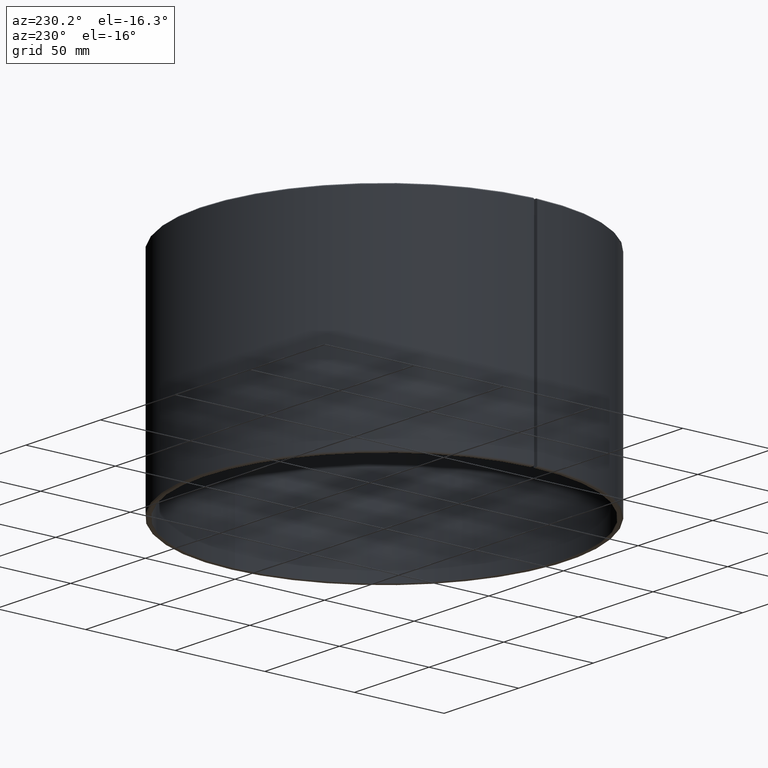
[diagram: clean part render]
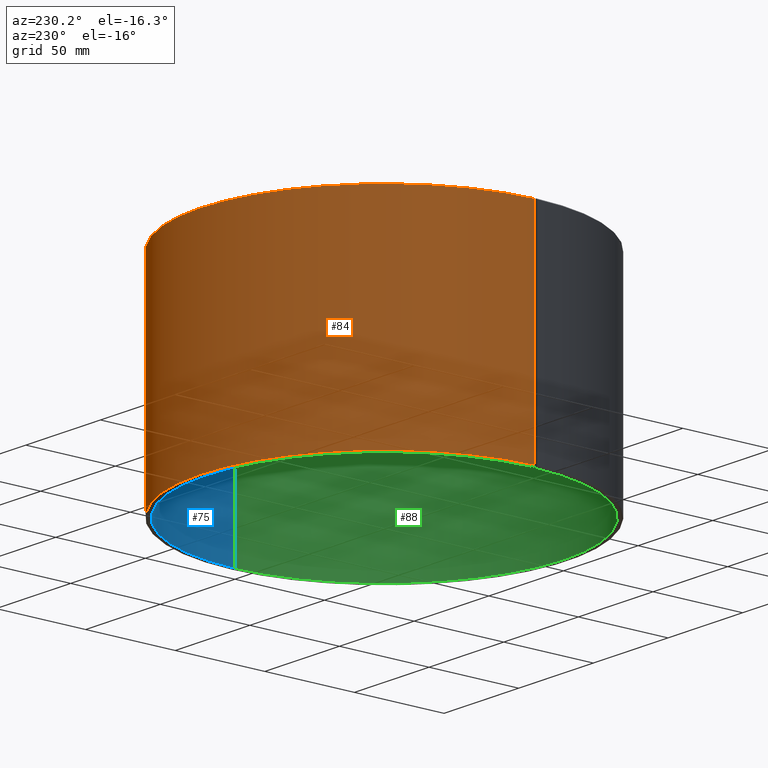
[diagram: same view with three faces highlighted in distinct colors, each labeled with its STEP entity id]
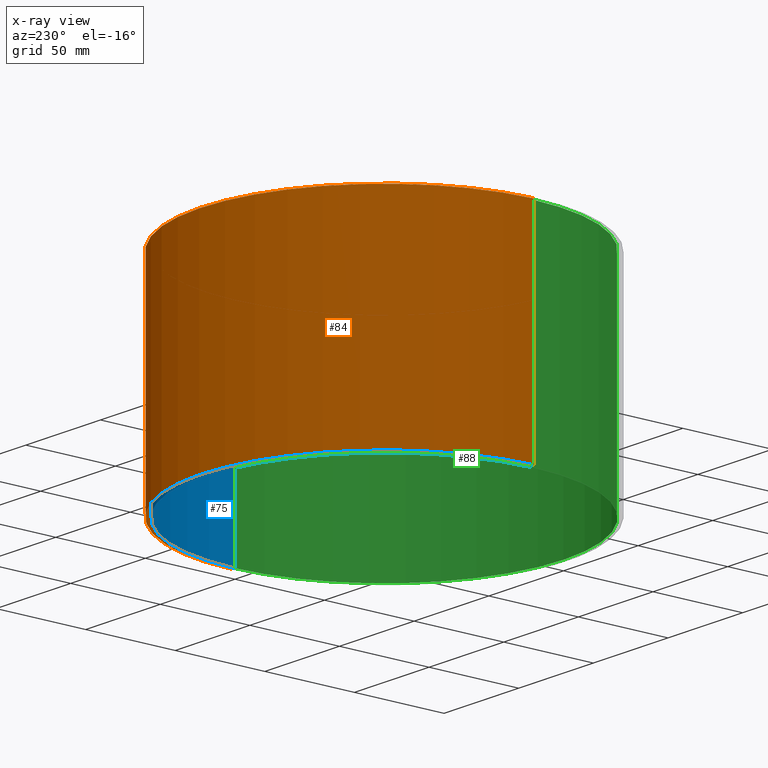
[diagram: x-ray of the same camera — body ghosted, the three highlighted faces saturated]
A machine part, auxiliary view with three faces highlighted in distinct colors.
The next image is the same camera in x-ray (body ghosted, the three faces saturated) — at least one of them is partly hidden behind the body in this view.
Their STEP definitions:

[orange] entity #84 — the highlighted cylindrical surface (partial cylindrical patch) has radius 102.5 mm, axis along (0, -0, 1).
#84=ADVANCED_FACE('',(#110),#111,.T.);
#110=FACE_OUTER_BOUND('',#142,.T.);
#111=CYLINDRICAL_SURFACE('',#143,102.5);
#142=EDGE_LOOP('',(#221,#222,#223,#224));
#143=AXIS2_PLACEMENT_3D('',#225,#226,#227);
#221=ORIENTED_EDGE('',*,*,#291,.T.);
#222=ORIENTED_EDGE('',*,*,#307,.T.);
#223=ORIENTED_EDGE('',*,*,#308,.T.);
#224=ORIENTED_EDGE('',*,*,#309,.F.);
#225=CARTESIAN_POINT('',(3.43859627909202E-014,-3.92324924818481E-014,60.0));
#226=DIRECTION('',(5.48707263966372E-016,-6.09939603923743E-016,1.0));
#227=DIRECTION('',(-1.0,-3.10522299689076E-016,5.48707263966372E-016));
#291=EDGE_CURVE('',#332,#339,#340,.T.);
#307=EDGE_CURVE('',#339,#363,#365,.T.);
#308=EDGE_CURVE('',#363,#366,#367,.T.);
#309=EDGE_CURVE('',#332,#366,#368,.T.);
#332=VERTEX_POINT('',#398);
#339=VERTEX_POINT('',#407);
#340=LINE('',#408,#409);
#363=VERTEX_POINT('',#440);
#365=CIRCLE('',#443,102.5);
#366=VERTEX_POINT('',#444);
#367=LINE('',#445,#446);
#368=CIRCLE('',#447,102.5);
#398=CARTESIAN_POINT('',(102.5,-5.62479928884409E-014,119.5));
#407=CARTESIAN_POINT('',(102.5,1.71170797645324E-014,0.499999999999953));
#408=CARTESIAN_POINT('',(102.5,-1.99565864549782E-014,59.9999999999999));
#409=VECTOR('',#485,1.0);
#440=CARTESIAN_POINT('',(-102.48438875353,1.78887165982153,0.500000000000067));
#443=AXIS2_PLACEMENT_3D('',#513,#514,#515);
#444=CARTESIAN_POINT('',(-102.48438875353,1.78887165982146,119.5));
#445=CARTESIAN_POINT('',(-102.48438875353,1.78887165982153,0.50000000000006));
#446=VECTOR('',#516,10.0);
#447=AXIS2_PLACEMENT_3D('',#517,#518,#519);
#485=DIRECTION('',(-5.48707263966372E-016,6.09939603923743E-016,-1.0));
#513=CARTESIAN_POINT('',(1.73788058492098E-015,-2.1435181773482E-015,0.500000000000009));
#514=DIRECTION('',(5.48707263966372E-016,-6.09939603923743E-016,1.0));
#515=DIRECTION('',(-1.0,-3.10522299689076E-016,5.48707263966372E-016));
#516=DIRECTION('',(5.4879897127419E-016,-6.04685695777631E-016,1.0));
#517=CARTESIAN_POINT('',(6.70340449969194E-014,-7.52112437617229E-014,119.5));
#518=DIRECTION('',(5.48707263966372E-016,-6.09939603923743E-016,1.0));
#519=DIRECTION('',(-1.0,-3.10522299689076E-016,5.48707263966372E-016));

[blue] entity #75 — the highlighted cylindrical surface (partial cylindrical patch) has radius 100 mm, axis along (0, -0, 1).
#75=ADVANCED_FACE('',(#92),#93,.F.);
#92=FACE_OUTER_BOUND('',#124,.T.);
#93=CYLINDRICAL_SURFACE('',#125,100.0);
#124=EDGE_LOOP('',(#156,#157,#158,#159));
#125=AXIS2_PLACEMENT_3D('',#160,#161,#162);
#156=ORIENTED_EDGE('',*,*,#280,.F.);
#157=ORIENTED_EDGE('',*,*,#281,.T.);
#158=ORIENTED_EDGE('',*,*,#282,.T.);
#159=ORIENTED_EDGE('',*,*,#283,.F.);
#160=CARTESIAN_POINT('',(3.43859627909202E-014,-3.92324924818481E-014,60.0));
#161=DIRECTION('',(5.48707263966372E-016,-6.09939603923743E-016,1.0));
#162=DIRECTION('',(-1.0,-3.10522299689076E-016,5.48707263966372E-016));
#280=EDGE_CURVE('',#318,#319,#320,.T.);
#281=EDGE_CURVE('',#318,#321,#322,.T.);
#282=EDGE_CURVE('',#321,#323,#324,.T.);
#283=EDGE_CURVE('',#319,#323,#325,.T.);
#318=VERTEX_POINT('',#380);
#319=VERTEX_POINT('',#381);
#320=LINE('',#382,#383);
#321=VERTEX_POINT('',#384);
#322=CIRCLE('',#385,100.0);
#323=VERTEX_POINT('',#386);
#324=LINE('',#387,#388);
#325=CIRCLE('',#389,100.0);
#380=CARTESIAN_POINT('',(100.0,-5.6563970729483E-014,119.8));
#381=CARTESIAN_POINT('',(100.0,1.682073274528E-014,0.199999999999943));
#382=CARTESIAN_POINT('',(100.0,-2.0426730504414E-014,59.9999999999999));
#383=VECTOR('',#464,1.0);
#384=CARTESIAN_POINT('',(-99.984769515639,1.74524064372825,119.8));
#385=AXIS2_PLACEMENT_3D('',#465,#466,#467);
#386=CARTESIAN_POINT('',(-99.9847695156391,1.74524064372832,0.200000000000054));
#387=CARTESIAN_POINT('',(-99.984769515639,1.74524064372825,119.8));
#388=VECTOR('',#468,10.0);
#389=AXIS2_PLACEMENT_3D('',#469,#470,#471);
#464=DIRECTION('',(-5.48707263966372E-016,6.09939603923743E-016,-1.0));
#465=CARTESIAN_POINT('',(6.71986571761093E-014,-7.53758559409128E-014,119.8));
#466=DIRECTION('',(5.48707263966372E-016,-6.09939603923743E-016,1.0));
#467=DIRECTION('',(-1.0,-3.10522299689076E-016,5.48707263966372E-016));
#468=DIRECTION('',(-8.45808268929862E-016,6.09589145336826E-016,-1.0));
#469=CARTESIAN_POINT('',(1.57326840573107E-015,-1.97890599815828E-015,0.199999999999998));
#470=DIRECTION('',(5.48707263966372E-016,-6.09939603923743E-016,1.0));
#471=DIRECTION('',(-1.0,-3.10522299689076E-016,5.48707263966372E-016));

[green] entity #88 — the highlighted cylindrical surface (partial cylindrical patch) has radius 100 mm, axis along (0, -0, 1).
#88=ADVANCED_FACE('',(#118),#119,.F.);
#118=FACE_OUTER_BOUND('',#150,.T.);
#119=CYLINDRICAL_SURFACE('',#151,100.0);
#150=EDGE_LOOP('',(#251,#252,#253,#254));
#151=AXIS2_PLACEMENT_3D('',#255,#256,#257);
#251=ORIENTED_EDGE('',*,*,#280,.T.);
#252=ORIENTED_EDGE('',*,*,#302,.F.);
#253=ORIENTED_EDGE('',*,*,#317,.F.);
#254=ORIENTED_EDGE('',*,*,#315,.T.);
#255=CARTESIAN_POINT('',(3.43859627909202E-014,-3.92324924818481E-014,60.0));
#256=DIRECTION('',(5.48707263966372E-016,-6.09939603923743E-016,1.0));
#257=DIRECTION('',(-1.0,-3.10522299689076E-016,5.48707263966372E-016));
#280=EDGE_CURVE('',#318,#319,#320,.T.);
#302=EDGE_CURVE('',#356,#319,#358,.T.);
#315=EDGE_CURVE('',#376,#318,#377,.T.);
#317=EDGE_CURVE('',#376,#356,#379,.T.);
#318=VERTEX_POINT('',#380);
#319=VERTEX_POINT('',#381);
#320=LINE('',#382,#383);
#356=VERTEX_POINT('',#430);
#358=CIRCLE('',#433,100.0);
#376=VERTEX_POINT('',#458);
#377=CIRCLE('',#459,100.0);
#379=LINE('',#462,#463);
#380=CARTESIAN_POINT('',(100.0,-5.6563970729483E-014,119.8));
#381=CARTESIAN_POINT('',(100.0,1.682073274528E-014,0.199999999999943));
#382=CARTESIAN_POINT('',(100.0,-2.0426730504414E-014,59.9999999999999));
#383=VECTOR('',#464,1.0);
#430=CARTESIAN_POINT('',(-100.0,-3.36032548396768E-014,0.200000000000057));
#433=AXIS2_PLACEMENT_3D('',#504,#505,#506);
#458=CARTESIAN_POINT('',(-99.9999999999999,-1.05889981757806E-013,119.8));
#459=AXIS2_PLACEMENT_3D('',#529,#530,#531);
#462=CARTESIAN_POINT('',(-99.9999999999999,-1.05889981757806E-013,119.8));
#463=VECTOR('',#533,10.0);
#464=DIRECTION('',(-5.48707263966372E-016,6.09939603923743E-016,-1.0));
#504=CARTESIAN_POINT('',(1.57326840573107E-015,-1.97890599815828E-015,0.199999999999998));
#505=DIRECTION('',(5.48707263966372E-016,-6.09939603923743E-016,1.0));
#506=DIRECTION('',(-1.0,-3.10522299689076E-016,5.48707263966372E-016));
#529=CARTESIAN_POINT('',(6.71986571761093E-014,-7.53758559409128E-014,119.8));
#530=DIRECTION('',(5.48707263966372E-016,-6.09939603923743E-016,1.0));
#531=DIRECTION('',(-1.0,-3.10522299689076E-016,5.48707263966372E-016));
#533=DIRECTION('',(-8.45756902662066E-016,6.04404071221818E-016,-1.0));